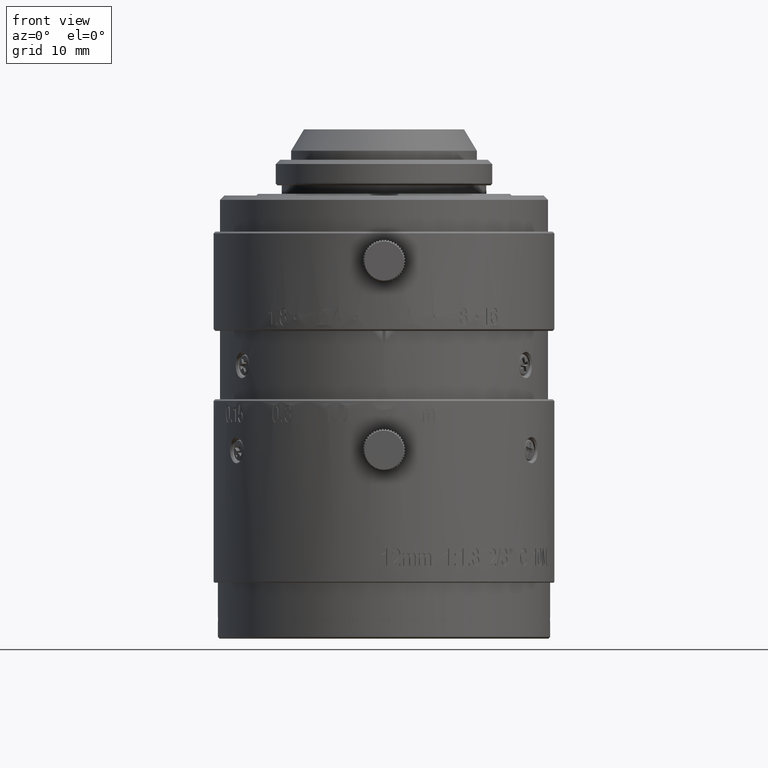
[diagram: clean part render]
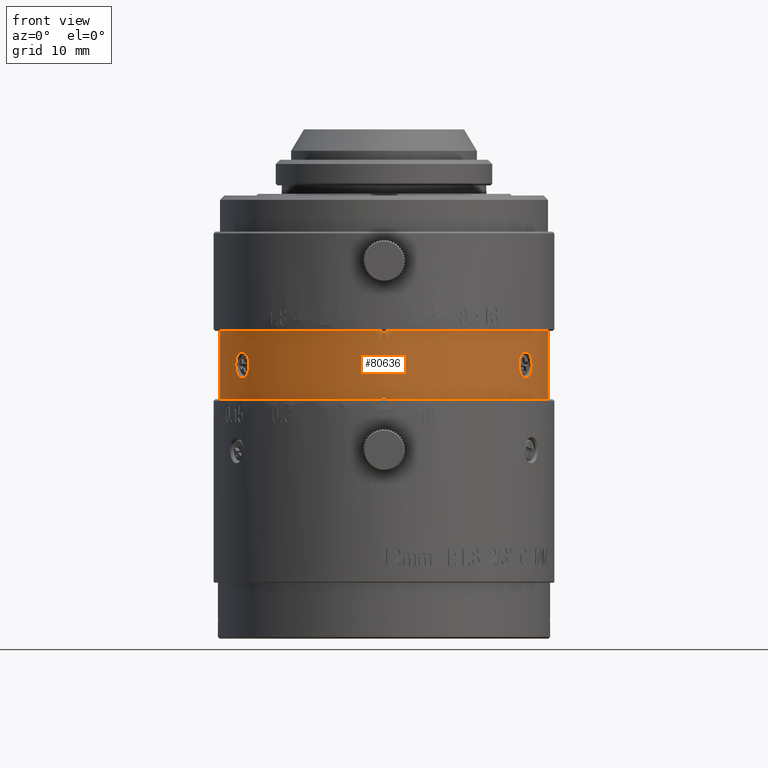
[diagram: same view with one face highlighted and labeled with its STEP entity id]
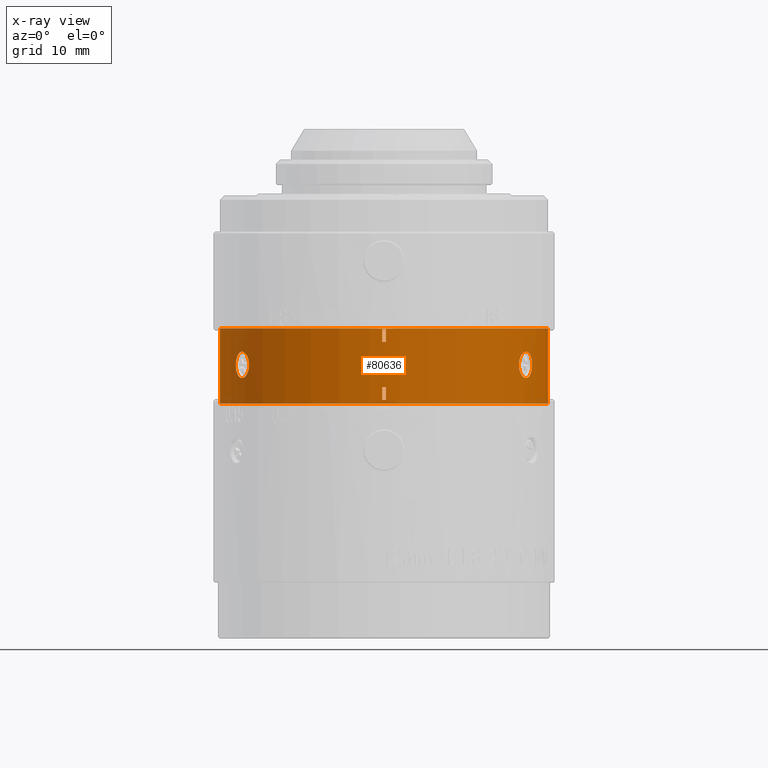
[diagram: x-ray of the same camera — body ghosted, the highlighted face saturated]
A machine part, front view. The second image highlights one B-rep face of the part: STEP entity #80636.
The next image is the same camera in x-ray: the body ghosted, the highlighted face saturated — about 0% of this face is hidden behind the body in this view.
In plain terms, the highlighted cylindrical surface (partial cylindrical patch) has radius 19.25 mm, axis along (0, 0, -1).
Its self-contained STEP definition (entity closure, byte-faithful):
#4 = CARTESIAN_POINT ( 'NONE',  ( -0.2000000000000000111, -19.24896101091999867, 32.00000000000000000 ) ) ;
#352 = CARTESIAN_POINT ( 'NONE',  ( 0.2000000000000000111, -19.24896101091999867, 25.19999999999999929 ) ) ;
#589 = CARTESIAN_POINT ( 'NONE',  ( -17.39561481778000029, -8.243487436245999334, 29.30167287013000177 ) ) ;
#1605 = CARTESIAN_POINT ( 'NONE',  ( -17.39557195870550999, -8.243579276830715230, 29.50269143074085321 ) ) ;
#1622 = CARTESIAN_POINT ( 'NONE',  ( 0.000000000000000000, 0.000000000000000000, 33.50000000000000000 ) ) ;
#1909 = VECTOR ( 'NONE', #75632, 1000.000000000000000 ) ;
#2504 = CARTESIAN_POINT ( 'NONE',  ( 17.33571209178584382, -8.369241344209058298, 28.60967135332993649 ) ) ;
#2682 = DIRECTION ( 'NONE',  ( 0.000000000000000000, 0.000000000000000000, -1.000000000000000000 ) ) ;
#2855 = VERTEX_POINT ( 'NONE', #78089 ) ;
#3229 = CARTESIAN_POINT ( 'NONE',  ( 15.83687694445000105, -10.94330062852000118, 29.30167287013000177 ) ) ;
#3551 = CARTESIAN_POINT ( 'NONE',  ( -16.97104322773824592, -9.091605040600285292, 27.83763029017866586 ) ) ;
#4772 = CARTESIAN_POINT ( 'NONE',  ( -17.28521079594111853, -8.473117568986655357, 28.43780934090291268 ) ) ;
#5084 = VECTOR ( 'NONE', #76398, 1000.000000000000000 ) ;
#5162 = VERTEX_POINT ( 'NONE', #41913 ) ;
#5374 = CARTESIAN_POINT ( 'NONE',  ( -16.41046397677134294, -10.06583315174412441, 30.78180098499070638 ) ) ;
#5378 = VERTEX_POINT ( 'NONE', #25244 ) ;
#5627 = ORIENTED_EDGE ( 'NONE', *, *, #68809, .F. ) ;
#6038 = ORIENTED_EDGE ( 'NONE', *, *, #33103, .F. ) ;
#6441 = LINE ( 'NONE', #76191, #72898 ) ;
#6602 = CARTESIAN_POINT ( 'NONE',  ( -17.39561481778000029, -8.243487436245999334, 29.30167287013000177 ) ) ;
#7190 = B_SPLINE_CURVE_WITH_KNOTS ( 'NONE', 3,
 ( #11934, #11117, #10319, #55129, #67211, #10731, #48097, #73426, #23554, #75062, #41865, #16927, #80873 ),
 .UNSPECIFIED., .F., .F.,
 ( 4, 1, 1, 1, 1, 1, 1, 1, 1, 1, 4 ),
 ( 0.000000000000000000, 0.1250000000000000000, 0.2500000000000000000, 0.3125000000000000000, 0.3750000000000000000, 0.5000000000000000000, 0.6250000000000000000, 0.6875000000000000000, 0.7500000000000000000, 0.8750000000000000000, 1.000000000000000000 ),
 .UNSPECIFIED. ) ;
#7413 = CARTESIAN_POINT ( 'NONE',  ( -17.23444392447733264, -8.577633493403288512, 30.33389762580193505 ) ) ;
#8230 = CARTESIAN_POINT ( 'NONE',  ( -16.92175346269860725, -9.180337058330566791, 30.78230969841388998 ) ) ;
#8246 = DIRECTION ( 'NONE',  ( 0.000000000000000000, 0.000000000000000000, 1.000000000000000000 ) ) ;
#8313 = DIRECTION ( 'NONE',  ( 0.000000000000000000, 0.000000000000000000, -1.000000000000000000 ) ) ;
#8728 = CARTESIAN_POINT ( 'NONE',  ( 16.82316847963381079, -9.358075195771657917, 27.77706119462433776 ) ) ;
#9182 = CARTESIAN_POINT ( 'NONE',  ( 0.2000000000000000111, -19.24896101091999867, 33.50000000000000000 ) ) ;
#9776 = CARTESIAN_POINT ( 'NONE',  ( -17.39561481778000029, -8.243487436245999334, 29.30167287013000177 ) ) ;
#10319 = CARTESIAN_POINT ( 'NONE',  ( 17.36086090096591761, -8.317416551008617986, 29.90623670276087864 ) ) ;
#10603 = CARTESIAN_POINT ( 'NONE',  ( -16.07804622700327712, -10.58885896489952039, 28.18007222757701413 ) ) ;
#10731 = CARTESIAN_POINT ( 'NONE',  ( 16.92249920805411634, -9.178962115900493046, 30.78180098499115758 ) ) ;
#11011 = LINE ( 'NONE', #30107, #33277 ) ;
#11117 = CARTESIAN_POINT ( 'NONE',  ( 17.39564462823916458, -8.243427487721222136, 29.50098444420200039 ) ) ;
#11700 = CARTESIAN_POINT ( 'NONE',  ( 0.000000000000000000, 0.000000000000000000, 24.78229999999999933 ) ) ;
#11880 = EDGE_LOOP ( 'NONE', ( #49504, #16361, #13303, #61979 ) ) ;
#11934 = CARTESIAN_POINT ( 'NONE',  ( 17.39561521131999910, -8.243486605791000343, 29.30000000000000071 ) ) ;
#12496 = LINE ( 'NONE', #12916, #1909 ) ;
#12916 = CARTESIAN_POINT ( 'NONE',  ( -0.2000000000000000111, -19.24896101091999867, 25.19999999999999929 ) ) ;
#12977 = EDGE_CURVE ( 'NONE', #64187, #73850, #48775, .T. ) ;
#13303 = ORIENTED_EDGE ( 'NONE', *, *, #57365, .T. ) ;
#13666 = DIRECTION ( 'NONE',  ( 0.000000000000000000, 0.000000000000000000, 1.000000000000000000 ) ) ;
#13674 = EDGE_CURVE ( 'NONE', #5378, #36484, #68220, .T. ) ;
#13957 = CARTESIAN_POINT ( 'NONE',  ( 0.2000000000000000111, -19.24896101091999867, 26.70000000000000284 ) ) ;
#14116 = EDGE_LOOP ( 'NONE', ( #30943, #30742, #40296, #61332 ) ) ;
#14137 = CARTESIAN_POINT ( 'NONE',  ( 15.98054046196464917, -10.73287287455486627, 28.43780934090569446 ) ) ;
#14546 = CARTESIAN_POINT ( 'NONE',  ( 15.83681883770984200, -10.94338366585267863, 29.10065430951705778 ) ) ;
#14936 = CARTESIAN_POINT ( 'NONE',  ( 0.000000000000000000, 0.000000000000000000, 32.00000000000000000 ) ) ;
#14942 = CARTESIAN_POINT ( 'NONE',  ( 16.62086779528304348, -9.715189961166819543, 27.73672500177223199 ) ) ;
#15341 = CARTESIAN_POINT ( 'NONE',  ( 17.39561521131999910, -8.243486605791000343, 29.30000000000000071 ) ) ;
#15505 = VERTEX_POINT ( 'NONE', #4 ) ;
#15646 = DIRECTION ( 'NONE',  ( 0.000000000000000000, 0.000000000000000000, -1.000000000000000000 ) ) ;
#16279 = EDGE_CURVE ( 'NONE', #37898, #80423, #6441, .T. ) ;
#16361 = ORIENTED_EDGE ( 'NONE', *, *, #76335, .T. ) ;
#16671 = VECTOR ( 'NONE', #2682, 1000.000000000000000 ) ;
#16927 = CARTESIAN_POINT ( 'NONE',  ( 15.83693505120125522, -10.94321759118630233, 29.50269143074091360 ) ) ;
#17128 = DIRECTION ( 'NONE',  ( 0.000000000000000000, 0.000000000000000000, 1.000000000000000000 ) ) ;
#17973 = CIRCLE ( 'NONE', #60436, 19.25000000000000000 ) ;
#18894 = VERTEX_POINT ( 'NONE', #74485 ) ;
#19382 = CARTESIAN_POINT ( 'NONE',  ( 0.000000000000000000, 0.000000000000000000, 33.58230000000000359 ) ) ;
#19896 = LINE ( 'NONE', #70568, #35475 ) ;
#20355 = VERTEX_POINT ( 'NONE', #28738 ) ;
#20522 = ORIENTED_EDGE ( 'NONE', *, *, #42365, .F. ) ;
#20544 = LINE ( 'NONE', #45471, #16671 ) ;
#21188 = CARTESIAN_POINT ( 'NONE',  ( 16.35908254019889796, -10.15155204364294228, 27.83763029018339097 ) ) ;
#22072 = VERTEX_POINT ( 'NONE', #3229 ) ;
#22586 = EDGE_LOOP ( 'NONE', ( #37264, #20522 ) ) ;
#22624 = CARTESIAN_POINT ( 'NONE',  ( -15.91583166038027031, -10.82854639207895175, 28.60967135332770894 ) ) ;
#22792 = AXIS2_PLACEMENT_3D ( 'NONE', #14936, #8313, #40260 ) ;
#22809 = AXIS2_PLACEMENT_3D ( 'NONE', #73372, #15646, #28110 ) ;
#23018 = CARTESIAN_POINT ( 'NONE',  ( -15.83687642203000046, -10.94330138455999979, 29.30000000000000071 ) ) ;
#23554 = CARTESIAN_POINT ( 'NONE',  ( 16.21949672350370975, -10.36880342308924519, 30.59237734074769932 ) ) ;
#24054 = ORIENTED_EDGE ( 'NONE', *, *, #12977, .F. ) ;
#24603 = FACE_BOUND ( 'NONE', #60577, .T. ) ;
#25244 = CARTESIAN_POINT ( 'NONE',  ( -15.83687642203000046, -10.94330138455999979, 29.30000000000000071 ) ) ;
#25759 = AXIS2_PLACEMENT_3D ( 'NONE', #11700, #55715, #55313 ) ;
#25984 = VERTEX_POINT ( 'NONE', #51532 ) ;
#26622 = B_SPLINE_CURVE_WITH_KNOTS ( 'NONE', 3,
 ( #46105, #14546, #71849, #14137, #33636, #21188, #14942, #8728, #71447, #58573, #2504, #72669, #33244, #15341 ),
 .UNSPECIFIED., .F., .F.,
 ( 4, 1, 1, 1, 1, 1, 1, 1, 1, 1, 1, 4 ),
 ( 0.000000000000000000, 0.1250000000000000000, 0.1875000000000000000, 0.2500000000000000000, 0.3750000000000000000, 0.5000000000000000000, 0.5625000000000000000, 0.6250000000000000000, 0.7500000000000000000, 0.8750000000000000000, 0.9375000000000000000, 1.000000000000000000 ),
 .UNSPECIFIED. ) ;
#26677 = CARTESIAN_POINT ( 'NONE',  ( 19.25000000000000000, 0.000000000000000000, 33.58230000000000359 ) ) ;
#27355 = ORIENTED_EDGE ( 'NONE', *, *, #52690, .T. ) ;
#28110 = DIRECTION ( 'NONE',  ( 0.01038961038961009990, -0.9999460265414089610, 0.000000000000000000 ) ) ;
#28738 = CARTESIAN_POINT ( 'NONE',  ( 19.25000000000000000, 0.000000000000000000, 24.78229999999999933 ) ) ;
#29226 = FACE_BOUND ( 'NONE', #14116, .T. ) ;
#30095 = CARTESIAN_POINT ( 'NONE',  ( -16.51591508988606449, -9.890253677630706619, 27.77706119461942080 ) ) ;
#30107 = CARTESIAN_POINT ( 'NONE',  ( -19.25000000000000000, 0.000000000000000000, 33.58230000000000359 ) ) ;
#30275 = CARTESIAN_POINT ( 'NONE',  ( -15.88352447751340257, -10.87623829629627359, 29.90623670276069390 ) ) ;
#30309 = DIRECTION ( 'NONE',  ( 0.000000000000000000, 0.000000000000000000, 1.000000000000000000 ) ) ;
#30435 = AXIS2_PLACEMENT_3D ( 'NONE', #74079, #30870, #67034 ) ;
#30686 = CARTESIAN_POINT ( 'NONE',  ( -16.67361936313146131, -9.627355953856229220, 30.88380048670631695 ) ) ;
#30742 = ORIENTED_EDGE ( 'NONE', *, *, #16279, .T. ) ;
#30870 = DIRECTION ( 'NONE',  ( 0.000000000000000000, 0.000000000000000000, -1.000000000000000000 ) ) ;
#30943 = ORIENTED_EDGE ( 'NONE', *, *, #41909, .T. ) ;
#31508 = CARTESIAN_POINT ( 'NONE',  ( -16.04502430361599252, -10.63762046463132371, 30.33258194568270838 ) ) ;
#31759 = EDGE_CURVE ( 'NONE', #78478, #37597, #17973, .T. ) ;
#32620 = CARTESIAN_POINT ( 'NONE',  ( 0.2000000000000000111, -19.24896101091999867, 32.00000000000000000 ) ) ;
#32899 = AXIS2_PLACEMENT_3D ( 'NONE', #19382, #30309, #73932 ) ;
#33103 = EDGE_CURVE ( 'NONE', #73850, #20355, #20544, .T. ) ;
#33244 = CARTESIAN_POINT ( 'NONE',  ( 17.39560050285452419, -8.243516164827054737, 29.19950777789821572 ) ) ;
#33277 = VECTOR ( 'NONE', #75365, 1000.000000000000000 ) ;
#33636 = CARTESIAN_POINT ( 'NONE',  ( 16.12557290798486420, -10.51493001550172046, 28.12215576468168265 ) ) ;
#33700 = VERTEX_POINT ( 'NONE', #352 ) ;
#35085 = CARTESIAN_POINT ( 'NONE',  ( -17.39565767685063946, -8.243395595659116282, 29.10065430951640408 ) ) ;
#35475 = VECTOR ( 'NONE', #13666, 1000.000000000000000 ) ;
#36484 = VERTEX_POINT ( 'NONE', #589 ) ;
#36907 = CARTESIAN_POINT ( 'NONE',  ( -15.83687642203000046, -10.94330138455999979, 29.30000000000000071 ) ) ;
#37264 = ORIENTED_EDGE ( 'NONE', *, *, #13674, .F. ) ;
#37338 = EDGE_CURVE ( 'NONE', #15505, #5162, #19896, .T. ) ;
#37597 = VERTEX_POINT ( 'NONE', #13957 ) ;
#37898 = VERTEX_POINT ( 'NONE', #9182 ) ;
#39774 = CARTESIAN_POINT ( 'NONE',  ( -17.36055708109237017, -8.318058181727330691, 29.90786467544548799 ) ) ;
#40260 = DIRECTION ( 'NONE',  ( 0.01038961038961009990, -0.9999460265414089610, 0.000000000000000000 ) ) ;
#40296 = ORIENTED_EDGE ( 'NONE', *, *, #65238, .T. ) ;
#41693 = FACE_BOUND ( 'NONE', #11880, .T. ) ;
#41741 = CARTESIAN_POINT ( 'NONE',  ( -16.31283036896661898, -10.22343596893390938, 27.89426190111852932 ) ) ;
#41865 = CARTESIAN_POINT ( 'NONE',  ( 15.88392823607741633, -10.87565436521193796, 29.90786467544566918 ) ) ;
#41909 = EDGE_CURVE ( 'NONE', #5162, #37898, #75673, .T. ) ;
#41913 = CARTESIAN_POINT ( 'NONE',  ( -0.2000000000000000111, -19.24896101091999867, 33.50000000000000000 ) ) ;
#42365 = EDGE_CURVE ( 'NONE', #36484, #5378, #75836, .T. ) ;
#42557 = CARTESIAN_POINT ( 'NONE',  ( -17.16898296644213673, -8.707690781140989600, 28.12215576467787415 ) ) ;
#45471 = CARTESIAN_POINT ( 'NONE',  ( 19.25000000000000000, 0.000000000000000000, 33.58230000000000359 ) ) ;
#46105 = CARTESIAN_POINT ( 'NONE',  ( 15.83687694445000105, -10.94330062852000118, 29.30167287013000177 ) ) ;
#47756 = CARTESIAN_POINT ( 'NONE',  ( -19.25000000000000000, 0.000000000000000000, 33.58230000000000359 ) ) ;
#48097 = CARTESIAN_POINT ( 'NONE',  ( 16.67434450887909136, -9.626099964573395340, 30.88380048670679301 ) ) ;
#48748 = CYLINDRICAL_SURFACE ( 'NONE', #30435, 19.25000000000000000 ) ;
#48775 = CIRCLE ( 'NONE', #32899, 19.25000000000000000 ) ;
#49504 = ORIENTED_EDGE ( 'NONE', *, *, #31759, .T. ) ;
#50657 = CARTESIAN_POINT ( 'NONE',  ( 0.2000000000000000111, -19.24896101091999867, 26.70000000000000284 ) ) ;
#51054 = LINE ( 'NONE', #50657, #5084 ) ;
#51532 = CARTESIAN_POINT ( 'NONE',  ( -19.25000000000000000, 0.000000000000000000, 24.78229999999999933 ) ) ;
#51674 = DIRECTION ( 'NONE',  ( 0.000000000000000000, 0.000000000000000000, -1.000000000000000000 ) ) ;
#52690 = EDGE_CURVE ( 'NONE', #64187, #25984, #11011, .T. ) ;
#52691 = ORIENTED_EDGE ( 'NONE', *, *, #81167, .F. ) ;
#53312 = CIRCLE ( 'NONE', #22792, 19.25000000000000000 ) ;
#54098 = DIRECTION ( 'NONE',  ( -0.01038961038961009990, -0.9999460265414089610, 0.000000000000000000 ) ) ;
#54184 = CARTESIAN_POINT ( 'NONE',  ( -16.72403520660547116, -9.536498763078240515, 27.73672500176718003 ) ) ;
#54957 = FACE_OUTER_BOUND ( 'NONE', #77936, .T. ) ;
#55129 = CARTESIAN_POINT ( 'NONE',  ( 17.23496170999726473, -8.576588418954569804, 30.33258194568301747 ) ) ;
#55313 = DIRECTION ( 'NONE',  ( 1.000000000000000000, 0.000000000000000000, 0.000000000000000000 ) ) ;
#55421 = CARTESIAN_POINT ( 'NONE',  ( -15.84853169829069941, -10.92646643399736561, 28.99524571275350837 ) ) ;
#55715 = DIRECTION ( 'NONE',  ( 0.000000000000000000, 0.000000000000000000, -1.000000000000000000 ) ) ;
#57365 = EDGE_CURVE ( 'NONE', #33700, #18894, #73225, .T. ) ;
#58573 = CARTESIAN_POINT ( 'NONE',  ( 17.20924397418964347, -8.629566993353989801, 28.18007222758062724 ) ) ;
#60349 = EDGE_CURVE ( 'NONE', #18894, #78478, #12496, .T. ) ;
#60426 = CARTESIAN_POINT ( 'NONE',  ( -17.36918378467161972, -8.299714102664683679, 28.79243867139344815 ) ) ;
#60436 = AXIS2_PLACEMENT_3D ( 'NONE', #73627, #17128, #54098 ) ;
#60577 = EDGE_LOOP ( 'NONE', ( #52691, #68674 ) ) ;
#60771 = CARTESIAN_POINT ( 'NONE',  ( -0.2000000000000000111, -19.24896101091999867, 26.70000000000000284 ) ) ;
#61332 = ORIENTED_EDGE ( 'NONE', *, *, #37338, .T. ) ;
#61555 = CIRCLE ( 'NONE', #25759, 19.25000000000000000 ) ;
#61979 = ORIENTED_EDGE ( 'NONE', *, *, #60349, .T. ) ;
#62237 = CARTESIAN_POINT ( 'NONE',  ( -15.83683993273997359, -10.94335641939592563, 29.50098444420193999 ) ) ;
#63146 = EDGE_CURVE ( 'NONE', #22072, #2855, #26622, .T. ) ;
#63767 = AXIS2_PLACEMENT_3D ( 'NONE', #1622, #8246, #78391 ) ;
#64187 = VERTEX_POINT ( 'NONE', #47756 ) ;
#65238 = EDGE_CURVE ( 'NONE', #80423, #15505, #53312, .T. ) ;
#67034 = DIRECTION ( 'NONE',  ( -1.000000000000000000, 0.000000000000000000, 0.000000000000000000 ) ) ;
#67211 = CARTESIAN_POINT ( 'NONE',  ( 17.09006076316227762, -8.860809851885806054, 30.59142571386544418 ) ) ;
#68220 = B_SPLINE_CURVE_WITH_KNOTS ( 'NONE', 3,
 ( #36907, #62237, #30275, #31508, #80927, #5374, #30686, #8230, #77560, #7413, #39774, #1605, #6602 ),
 .UNSPECIFIED., .F., .F.,
 ( 4, 1, 1, 1, 1, 1, 1, 1, 1, 1, 4 ),
 ( 0.000000000000000000, 0.1250000000000000000, 0.2500000000000000000, 0.3125000000000000000, 0.3750000000000000000, 0.5000000000000000000, 0.6250000000000000000, 0.6875000000000000000, 0.7500000000000000000, 0.8750000000000000000, 1.000000000000000000 ),
 .UNSPECIFIED. ) ;
#68674 = ORIENTED_EDGE ( 'NONE', *, *, #63146, .F. ) ;
#68809 = EDGE_CURVE ( 'NONE', #20355, #25984, #61555, .T. ) ;
#70568 = CARTESIAN_POINT ( 'NONE',  ( -0.2000000000000000111, -19.24896101091999867, 32.00000000000000000 ) ) ;
#71447 = CARTESIAN_POINT ( 'NONE',  ( 17.01017044753985274, -9.015607522682472563, 27.89426190112306614 ) ) ;
#71849 = CARTESIAN_POINT ( 'NONE',  ( 15.87235514939288095, -10.89229734918619741, 28.79243867139508595 ) ) ;
#72669 = CARTESIAN_POINT ( 'NONE',  ( 17.38686335457624565, -8.261997846407354018, 28.99524571275449247 ) ) ;
#72898 = VECTOR ( 'NONE', #51674, 1000.000000000000000 ) ;
#73225 = CIRCLE ( 'NONE', #22809, 19.25000000000000000 ) ;
#73372 = CARTESIAN_POINT ( 'NONE',  ( 0.000000000000000000, 0.000000000000000000, 25.19999999999999929 ) ) ;
#73426 = CARTESIAN_POINT ( 'NONE',  ( 16.41128183916558925, -10.06449984610682868, 30.78230969841433406 ) ) ;
#73627 = CARTESIAN_POINT ( 'NONE',  ( 0.000000000000000000, 0.000000000000000000, 26.70000000000000284 ) ) ;
#73850 = VERTEX_POINT ( 'NONE', #26677 ) ;
#73932 = DIRECTION ( 'NONE',  ( -1.000000000000000000, 0.000000000000000000, 0.000000000000000000 ) ) ;
#74079 = CARTESIAN_POINT ( 'NONE',  ( 0.000000000000000000, 0.000000000000000000, -2.200000000000000178 ) ) ;
#74485 = CARTESIAN_POINT ( 'NONE',  ( -0.2000000000000000111, -19.24896101091999867, 25.19999999999999929 ) ) ;
#75062 = CARTESIAN_POINT ( 'NONE',  ( 16.04567047187815731, -10.63664951199549513, 30.33389762580225124 ) ) ;
#75365 = DIRECTION ( 'NONE',  ( 0.000000000000000000, 0.000000000000000000, -1.000000000000000000 ) ) ;
#75632 = DIRECTION ( 'NONE',  ( 0.000000000000000000, 0.000000000000000000, 1.000000000000000000 ) ) ;
#75673 = CIRCLE ( 'NONE', #63767, 19.25000000000000000 ) ;
#75836 = B_SPLINE_CURVE_WITH_KNOTS ( 'NONE', 3,
 ( #9776, #35085, #60426, #4772, #42557, #3551, #54184, #30095, #41741, #10603, #22624, #55421, #80750, #23018 ),
 .UNSPECIFIED., .F., .F.,
 ( 4, 1, 1, 1, 1, 1, 1, 1, 1, 1, 1, 4 ),
 ( 0.000000000000000000, 0.1250000000000000000, 0.1875000000000000000, 0.2500000000000000000, 0.3750000000000000000, 0.5000000000000000000, 0.5625000000000000000, 0.6250000000000000000, 0.7500000000000000000, 0.8750000000000000000, 0.9375000000000000000, 1.000000000000000000 ),
 .UNSPECIFIED. ) ;
#76191 = CARTESIAN_POINT ( 'NONE',  ( 0.2000000000000000111, -19.24896101091999867, 33.50000000000000000 ) ) ;
#76335 = EDGE_CURVE ( 'NONE', #37597, #33700, #51054, .T. ) ;
#76398 = DIRECTION ( 'NONE',  ( 0.000000000000000000, 0.000000000000000000, -1.000000000000000000 ) ) ;
#77560 = CARTESIAN_POINT ( 'NONE',  ( -17.08939553299045855, -8.862094487604961657, 30.59237734074730142 ) ) ;
#77936 = EDGE_LOOP ( 'NONE', ( #27355, #5627, #6038, #24054 ) ) ;
#78089 = CARTESIAN_POINT ( 'NONE',  ( 17.39561521131999910, -8.243486605791000343, 29.30000000000000071 ) ) ;
#78391 = DIRECTION ( 'NONE',  ( -0.01038961038961009990, -0.9999460265414089610, 0.000000000000000000 ) ) ;
#78478 = VERTEX_POINT ( 'NONE', #60771 ) ;
#80423 = VERTEX_POINT ( 'NONE', #32620 ) ;
#80636 = ADVANCED_FACE ( 'NONE', ( #54957, #24603, #80704, #41693, #29226 ), #48748, .T. ) ;
#80704 = FACE_BOUND ( 'NONE', #22586, .T. ) ;
#80750 = CARTESIAN_POINT ( 'NONE',  ( -15.83689466667153489, -10.94327386715028183, 29.19950777789788887 ) ) ;
#80873 = CARTESIAN_POINT ( 'NONE',  ( 15.83687694445000105, -10.94330062852000118, 29.30167287013000177 ) ) ;
#80927 = CARTESIAN_POINT ( 'NONE',  ( -16.21871681142010857, -10.37002184717831987, 30.59142571386505693 ) ) ;
#81167 = EDGE_CURVE ( 'NONE', #2855, #22072, #7190, .T. ) ;